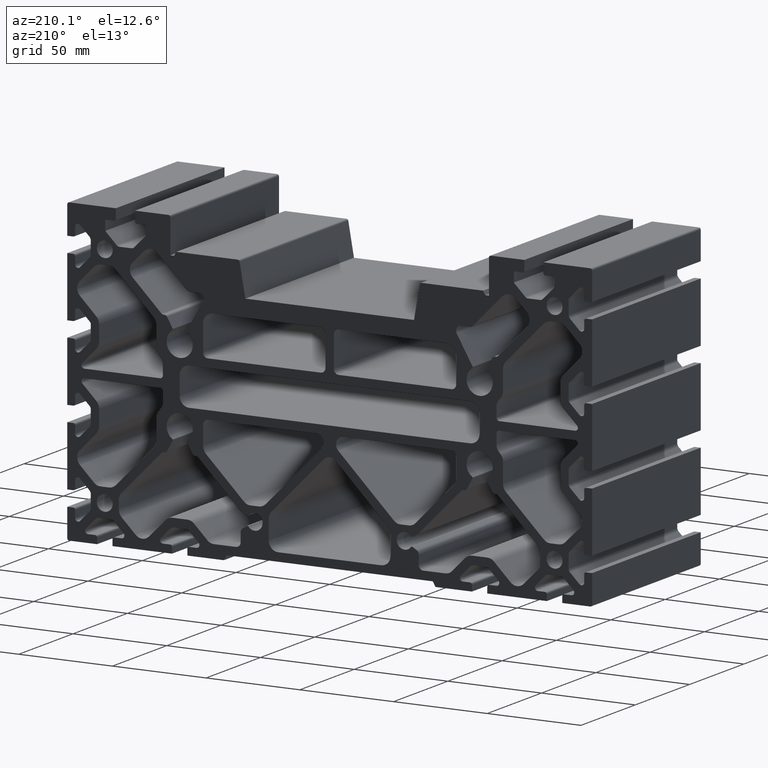
[diagram: clean part render]
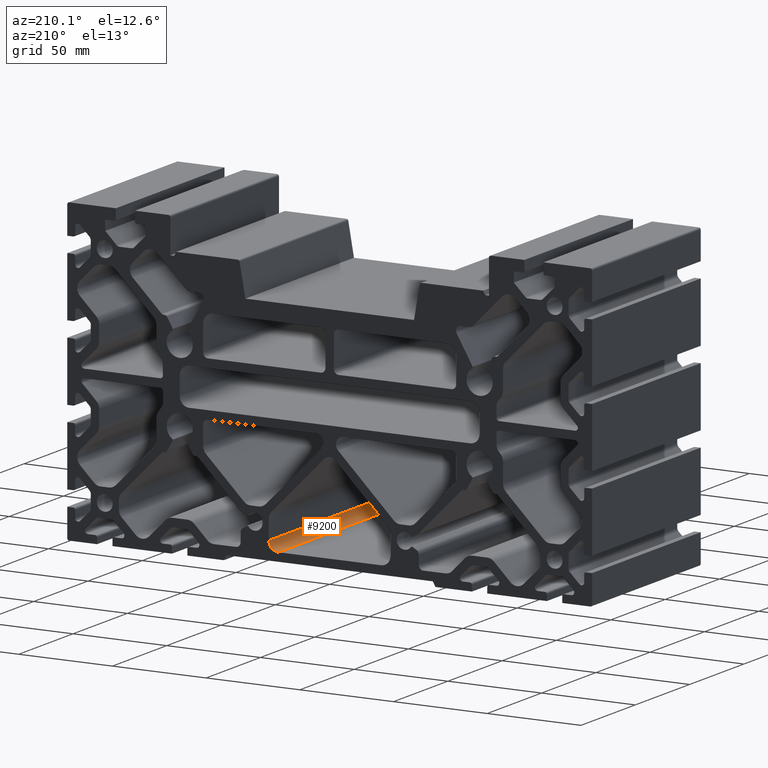
[diagram: same view with one face highlighted and labeled with its STEP entity id]
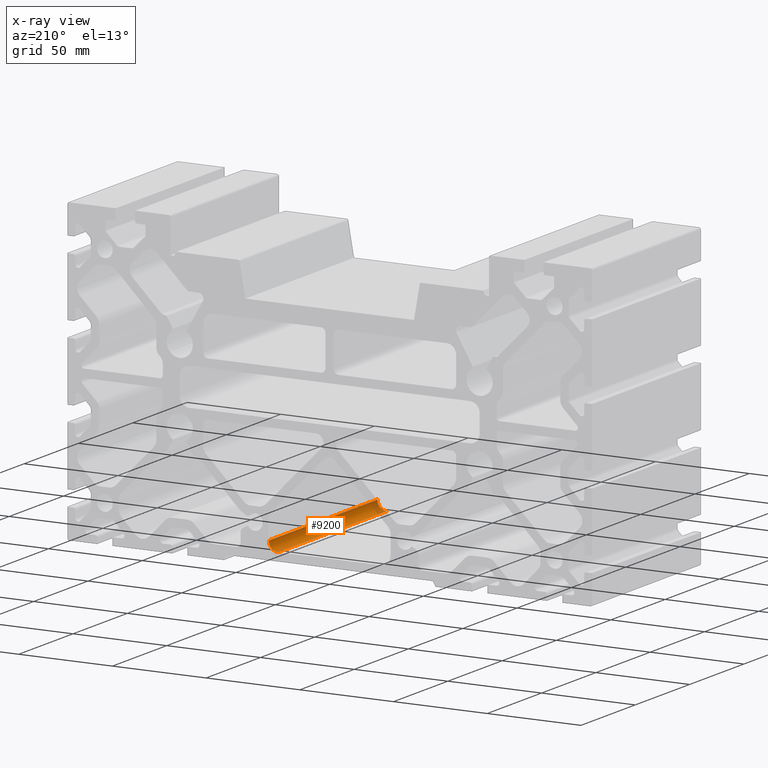
[diagram: x-ray of the same camera — body ghosted, the highlighted face saturated]
A machine part, auxiliary view. The second image highlights one B-rep face of the part: STEP entity #9200.
The next image is the same camera in x-ray: the body ghosted, the highlighted face saturated — about 6% of this face is hidden behind the body in this view.
In plain terms, the highlighted cylindrical surface (edge-blend (fillet) strip) has radius 5 mm, axis along (0, -1, 0).
Its self-contained STEP definition (entity closure, byte-faithful):
#415=FACE_OUTER_BOUND('',#889,.T.);
#889=EDGE_LOOP('',(#6484,#6485,#6486,#6487));
#1506=LINE('',#14001,#2476);
#1507=LINE('',#14005,#2477);
#2476=VECTOR('',#11194,10.);
#2477=VECTOR('',#11197,10.);
#3346=CIRCLE('',#9818,5.);
#3347=CIRCLE('',#9819,5.);
#3900=VERTEX_POINT('',#13999);
#3901=VERTEX_POINT('',#14000);
#3902=VERTEX_POINT('',#14002);
#3903=VERTEX_POINT('',#14004);
#4956=EDGE_CURVE('',#3900,#3901,#1506,.T.);
#4957=EDGE_CURVE('',#3900,#3902,#3346,.T.);
#4958=EDGE_CURVE('',#3902,#3903,#1507,.T.);
#4959=EDGE_CURVE('',#3903,#3901,#3347,.T.);
#6484=ORIENTED_EDGE('',*,*,#4956,.F.);
#6485=ORIENTED_EDGE('',*,*,#4957,.T.);
#6486=ORIENTED_EDGE('',*,*,#4958,.T.);
#6487=ORIENTED_EDGE('',*,*,#4959,.T.);
#8924=CYLINDRICAL_SURFACE('',#9817,5.);
#9200=ADVANCED_FACE('',(#415),#8924,.F.);
#9817=AXIS2_PLACEMENT_3D('',#13998,#11192,#11193);
#9818=AXIS2_PLACEMENT_3D('',#14003,#11195,#11196);
#9819=AXIS2_PLACEMENT_3D('',#14006,#11198,#11199);
#11192=DIRECTION('center_axis',(0.,-1.,0.));
#11193=DIRECTION('ref_axis',(9.86864910809966E-16,0.,1.));
#11194=DIRECTION('',(0.,1.,0.));
#11195=DIRECTION('center_axis',(0.,-1.,0.));
#11196=DIRECTION('ref_axis',(9.86864910809966E-16,0.,1.));
#11197=DIRECTION('',(0.,1.,0.));
#11198=DIRECTION('center_axis',(0.,1.,0.));
#11199=DIRECTION('ref_axis',(9.86864910809966E-16,0.,1.));
#13998=CARTESIAN_POINT('Origin',(27.5,0.,-68.0000000106118));
#13999=CARTESIAN_POINT('',(27.5,-50.,-73.0000000106118));
#14000=CARTESIAN_POINT('',(27.5,50.,-73.0000000106118));
#14001=CARTESIAN_POINT('',(27.5,0.,-73.0000000106118));
#14002=CARTESIAN_POINT('',(32.5,-50.,-68.0000000106118));
#14003=CARTESIAN_POINT('Origin',(27.5,-50.,-68.0000000106118));
#14004=CARTESIAN_POINT('',(32.5,50.,-68.0000000106118));
#14005=CARTESIAN_POINT('',(32.5,0.,-68.0000000106118));
#14006=CARTESIAN_POINT('Origin',(27.5,50.,-68.0000000106118));